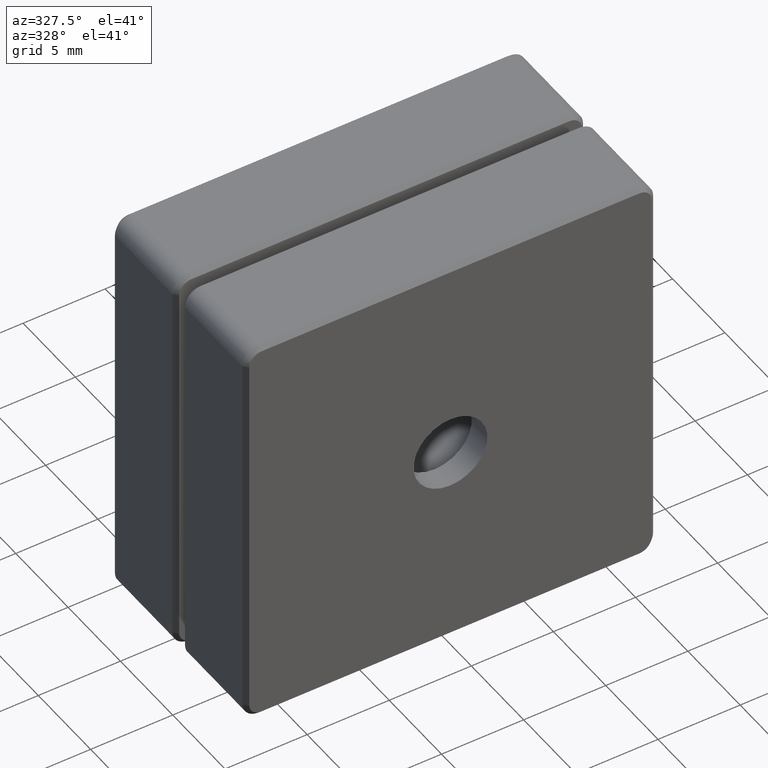
[diagram: clean part render]
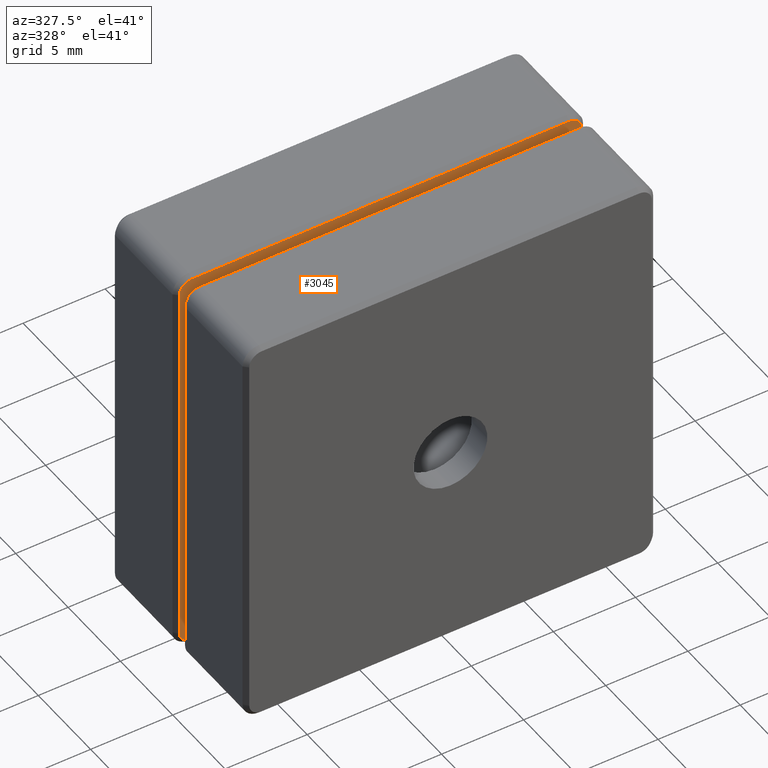
[diagram: same view with one face highlighted and labeled with its STEP entity id]
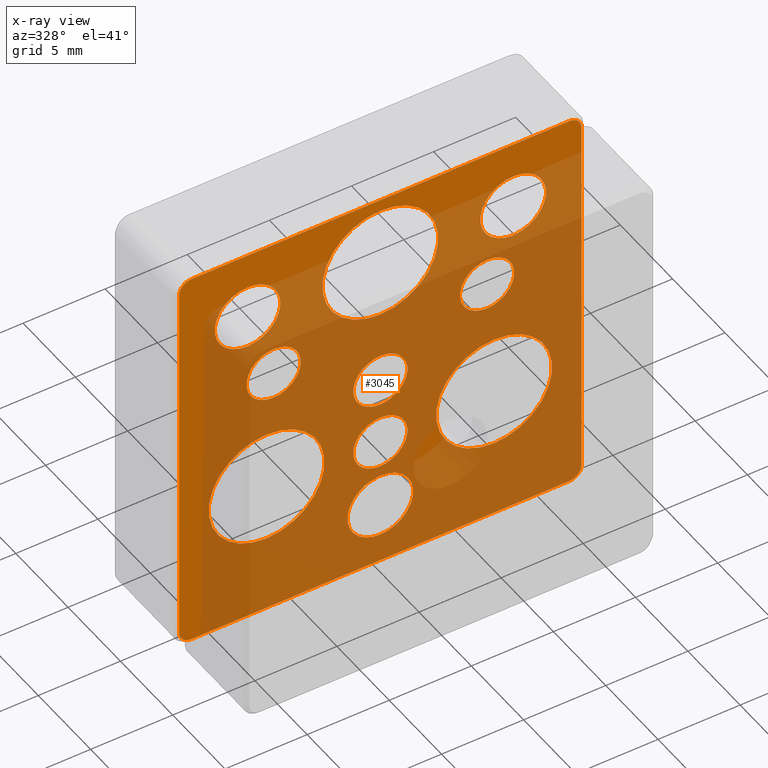
[diagram: x-ray of the same camera — body ghosted, the highlighted face saturated]
A machine part, auxiliary view. The second image highlights one B-rep face of the part: STEP entity #3045.
The next image is the same camera in x-ray: the body ghosted, the highlighted face saturated — about 79% of this face is hidden behind the body in this view.
In plain terms, the highlighted planar face has unit normal (-0, -1, 0).
Its self-contained STEP definition (entity closure, byte-faithful):
#10 = DIRECTION ( 'NONE',  ( 4.060337135958214105E-16, 0.0000000000000000000, 1.000000000000000000 ) ) ;
#20 = EDGE_CURVE ( 'NONE', #1151, #3327, #760, .T. ) ;
#37 = DIRECTION ( 'NONE',  ( -6.706162754953245178E-19, -1.000000000000000000, 7.904105642296774844E-20 ) ) ;
#76 = CIRCLE ( 'NONE', #3470, 2.000000000000000000 ) ;
#82 = CIRCLE ( 'NONE', #2383, 0.7499999999999988898 ) ;
#103 = ORIENTED_EDGE ( 'NONE', *, *, #525, .F. ) ;
#109 = VERTEX_POINT ( 'NONE', #2415 ) ;
#131 = VERTEX_POINT ( 'NONE', #2643 ) ;
#134 = CARTESIAN_POINT ( 'NONE',  ( -12.24999999999999467, 3.699958608817714101, -11.49999999999999645 ) ) ;
#136 = DIRECTION ( 'NONE',  ( 4.060337135958212133E-16, 0.0000000000000000000, 1.000000000000000000 ) ) ;
#142 = AXIS2_PLACEMENT_3D ( 'NONE', #605, #2214, #1677 ) ;
#149 = EDGE_CURVE ( 'NONE', #2611, #2272, #1176, .T. ) ;
#151 = EDGE_CURVE ( 'NONE', #109, #1894, #1357, .T. ) ;
#154 = ORIENTED_EDGE ( 'NONE', *, *, #3397, .T. ) ;
#159 = EDGE_LOOP ( 'NONE', ( #1069, #976 ) ) ;
#183 = VERTEX_POINT ( 'NONE', #3323 ) ;
#195 = FACE_BOUND ( 'NONE', #159, .T. ) ;
#207 = EDGE_CURVE ( 'NONE', #131, #2823, #1309, .T. ) ;
#208 = CARTESIAN_POINT ( 'NONE',  ( -12.24999999999999112, 3.699958608817714101, 11.50000000000000533 ) ) ;
#211 = CARTESIAN_POINT ( 'NONE',  ( -6.499999999999986677, 3.699958608817712769, 5.149999999999989697 ) ) ;
#225 = ORIENTED_EDGE ( 'NONE', *, *, #20, .T. ) ;
#228 = EDGE_CURVE ( 'NONE', #283, #2669, #300, .T. ) ;
#241 = CIRCLE ( 'NONE', #142, 2.000000000000000000 ) ;
#242 = VERTEX_POINT ( 'NONE', #953 ) ;
#252 = DIRECTION ( 'NONE',  ( 6.706162754953245178E-19, 1.000000000000000000, -7.904105642296774844E-20 ) ) ;
#278 = ORIENTED_EDGE ( 'NONE', *, *, #1503, .F. ) ;
#280 = ORIENTED_EDGE ( 'NONE', *, *, #360, .F. ) ;
#283 = VERTEX_POINT ( 'NONE', #3372 ) ;
#300 = CIRCLE ( 'NONE', #674, 1.649999999999999023 ) ;
#304 = EDGE_CURVE ( 'NONE', #2123, #2611, #3043, .T. ) ;
#307 = VERTEX_POINT ( 'NONE', #3111 ) ;
#308 = DIRECTION ( 'NONE',  ( 5.256737805990360535E-16, 0.0000000000000000000, 1.000000000000000000 ) ) ;
#316 = ORIENTED_EDGE ( 'NONE', *, *, #706, .F. ) ;
#327 = AXIS2_PLACEMENT_3D ( 'NONE', #1696, #3000, #1117 ) ;
#330 = DIRECTION ( 'NONE',  ( 4.921201350288817487E-16, 0.0000000000000000000, 1.000000000000000000 ) ) ;
#335 = CIRCLE ( 'NONE', #3428, 1.649999999999988365 ) ;
#337 = CARTESIAN_POINT ( 'NONE',  ( -11.49999999999999467, 3.699958608817714101, -12.24999999999999467 ) ) ;
#346 = EDGE_LOOP ( 'NONE', ( #103, #2404 ) ) ;
#358 = EDGE_LOOP ( 'NONE', ( #2468, #2969 ) ) ;
#359 = VERTEX_POINT ( 'NONE', #2885 ) ;
#360 = EDGE_CURVE ( 'NONE', #3007, #2559, #1805, .T. ) ;
#362 = FACE_BOUND ( 'NONE', #346, .T. ) ;
#382 = AXIS2_PLACEMENT_3D ( 'NONE', #2937, #1355, #1314 ) ;
#384 = EDGE_LOOP ( 'NONE', ( #316, #1973 ) ) ;
#411 = CARTESIAN_POINT ( 'NONE',  ( -11.49999999999999112, 3.699958608817714101, 12.25000000000000533 ) ) ;
#416 = CIRCLE ( 'NONE', #382, 2.000000000000000000 ) ;
#428 = AXIS2_PLACEMENT_3D ( 'NONE', #1651, #37, #308 ) ;
#451 = FACE_BOUND ( 'NONE', #568, .T. ) ;
#453 = AXIS2_PLACEMENT_3D ( 'NONE', #1992, #2540, #948 ) ;
#471 = VECTOR ( 'NONE', #664, 1000.000000000000000 ) ;
#478 = EDGE_CURVE ( 'NONE', #2697, #1014, #82, .T. ) ;
#522 = CARTESIAN_POINT ( 'NONE',  ( 1.146814786738503455E-14, 3.699958608817714101, 2.371231692689009342E-19 ) ) ;
#525 = EDGE_CURVE ( 'NONE', #2669, #283, #2250, .T. ) ;
#529 = CARTESIAN_POINT ( 'NONE',  ( 6.500000000000011546, 3.699958608817712769, 3.499999999999999112 ) ) ;
#535 = AXIS2_PLACEMENT_3D ( 'NONE', #874, #1394, #608 ) ;
#539 = CARTESIAN_POINT ( 'NONE',  ( 1.043276189771568680E-14, 3.699958608817712769, -2.550000000000012257 ) ) ;
#546 = CARTESIAN_POINT ( 'NONE',  ( 8.892795769816661266E-15, 3.699958608817712769, -5.849999999999988987 ) ) ;
#548 = DIRECTION ( 'NONE',  ( 0.0000000000000000000, 0.0000000000000000000, 1.000000000000000000 ) ) ;
#554 = CARTESIAN_POINT ( 'NONE',  ( 11.50000000000000888, 3.699958608817714101, 12.25000000000000000 ) ) ;
#568 = EDGE_LOOP ( 'NONE', ( #710, #3100 ) ) ;
#569 = DIRECTION ( 'NONE',  ( -6.706162754953245178E-19, -1.000000000000000000, 7.904105642296774844E-20 ) ) ;
#572 = CARTESIAN_POINT ( 'NONE',  ( 1.213810349481813988E-14, 3.699958608817714101, 1.649999999999999023 ) ) ;
#605 = CARTESIAN_POINT ( 'NONE',  ( -8.085799999999897736, 3.699958608817714101, 8.085800000000002541 ) ) ;
#608 = DIRECTION ( 'NONE',  ( 4.921201350288817487E-16, 0.0000000000000000000, 1.000000000000000000 ) ) ;
#616 = FACE_OUTER_BOUND ( 'NONE', #2941, .T. ) ;
#650 = DIRECTION ( 'NONE',  ( -6.706162754953245178E-19, -1.000000000000000000, 7.904105642296774844E-20 ) ) ;
#664 = DIRECTION ( 'NONE',  ( -1.000000000000000000, 6.706162754953179697E-19, 1.458251921993003464E-16 ) ) ;
#673 = CARTESIAN_POINT ( 'NONE',  ( 8.016861301820530470E-15, 3.699958608817714101, -8.500000000000000000 ) ) ;
#674 = AXIS2_PLACEMENT_3D ( 'NONE', #1487, #3073, #678 ) ;
#678 = DIRECTION ( 'NONE',  ( 4.060337135958214105E-16, 0.0000000000000000000, 1.000000000000000000 ) ) ;
#684 = DIRECTION ( 'NONE',  ( 4.060337135958211147E-16, 0.0000000000000000000, 1.000000000000000000 ) ) ;
#686 = DIRECTION ( 'NONE',  ( 0.0000000000000000000, 0.0000000000000000000, 1.000000000000000000 ) ) ;
#706 = EDGE_CURVE ( 'NONE', #183, #2723, #2544, .T. ) ;
#710 = ORIENTED_EDGE ( 'NONE', *, *, #3239, .F. ) ;
#735 = DIRECTION ( 'NONE',  ( -6.706162754953245178E-19, -1.000000000000000000, 7.904105642296774844E-20 ) ) ;
#736 = AXIS2_PLACEMENT_3D ( 'NONE', #978, #1753, #686 ) ;
#742 = AXIS2_PLACEMENT_3D ( 'NONE', #2906, #786, #1361 ) ;
#760 = CIRCLE ( 'NONE', #2943, 3.524999999999991473 ) ;
#762 = AXIS2_PLACEMENT_3D ( 'NONE', #673, #2501, #684 ) ;
#779 = AXIS2_PLACEMENT_3D ( 'NONE', #3019, #1435, #833 ) ;
#780 = LINE ( 'NONE', #3014, #2191 ) ;
#786 = DIRECTION ( 'NONE',  ( -6.706162754953245178E-19, -1.000000000000000000, 7.904105642296774844E-20 ) ) ;
#813 = VERTEX_POINT ( 'NONE', #3083 ) ;
#819 = CIRCLE ( 'NONE', #1383, 0.7500000000000006661 ) ;
#833 = DIRECTION ( 'NONE',  ( 4.060337135958211147E-16, 0.0000000000000000000, 1.000000000000000000 ) ) ;
#874 = CARTESIAN_POINT ( 'NONE',  ( -6.928203230275481239, 3.699958608817714101, -4.000000000000031974 ) ) ;
#901 = CIRCLE ( 'NONE', #535, 3.524999999999998135 ) ;
#903 = CARTESIAN_POINT ( 'NONE',  ( -11.49999999999999112, 3.699958608817714101, 12.25000000000000533 ) ) ;
#908 = CARTESIAN_POINT ( 'NONE',  ( 6.928203230275555846, 3.699958608817714101, -7.524999999999928413 ) ) ;
#922 = EDGE_CURVE ( 'NONE', #3327, #1151, #2127, .T. ) ;
#948 = DIRECTION ( 'NONE',  ( 5.256737805990365466E-16, 0.0000000000000000000, 1.000000000000000000 ) ) ;
#950 = FACE_BOUND ( 'NONE', #1628, .T. ) ;
#953 = CARTESIAN_POINT ( 'NONE',  ( -6.928203230275483016, 3.699958608817714101, -7.525000000000029665 ) ) ;
#973 = DIRECTION ( 'NONE',  ( -6.706162754953245178E-19, -1.000000000000000000, 7.904105642296774844E-20 ) ) ;
#976 = ORIENTED_EDGE ( 'NONE', *, *, #3159, .T. ) ;
#978 = CARTESIAN_POINT ( 'NONE',  ( 11.50000000000000888, 3.699958608817714101, 11.50000000000000000 ) ) ;
#990 = DIRECTION ( 'NONE',  ( 6.706162754953245178E-19, 1.000000000000000000, -7.904105642296774844E-20 ) ) ;
#1014 = VERTEX_POINT ( 'NONE', #2212 ) ;
#1032 = CARTESIAN_POINT ( 'NONE',  ( 8.085799999999926158, 3.699958608817714101, 8.085799999999998988 ) ) ;
#1045 = CIRCLE ( 'NONE', #453, 1.649999999999987033 ) ;
#1065 = CARTESIAN_POINT ( 'NONE',  ( 1.146814786738503455E-14, 3.699958608817714101, 2.371231692689009342E-19 ) ) ;
#1069 = ORIENTED_EDGE ( 'NONE', *, *, #3217, .T. ) ;
#1073 = AXIS2_PLACEMENT_3D ( 'NONE', #2390, #252, #2118 ) ;
#1081 = CARTESIAN_POINT ( 'NONE',  ( 11.50000000000000533, 3.699958608817714101, -11.50000000000000355 ) ) ;
#1105 = EDGE_LOOP ( 'NONE', ( #1135, #3229 ) ) ;
#1106 = ORIENTED_EDGE ( 'NONE', *, *, #2070, .F. ) ;
#1110 = CIRCLE ( 'NONE', #1743, 2.000000000000000000 ) ;
#1117 = DIRECTION ( 'NONE',  ( 4.060337135958211147E-16, 0.0000000000000000000, 1.000000000000000000 ) ) ;
#1133 = AXIS2_PLACEMENT_3D ( 'NONE', #522, #1310, #1332 ) ;
#1135 = ORIENTED_EDGE ( 'NONE', *, *, #3451, .F. ) ;
#1151 = VERTEX_POINT ( 'NONE', #2492 ) ;
#1176 = LINE ( 'NONE', #903, #471 ) ;
#1214 = CARTESIAN_POINT ( 'NONE',  ( 6.500000000000012434, 3.699958608817712769, 5.149999999999987921 ) ) ;
#1243 = ORIENTED_EDGE ( 'NONE', *, *, #1859, .T. ) ;
#1253 = EDGE_CURVE ( 'NONE', #2723, #183, #76, .T. ) ;
#1278 = CARTESIAN_POINT ( 'NONE',  ( -11.49999999999999467, 3.699958608817714101, -11.49999999999999645 ) ) ;
#1297 = DIRECTION ( 'NONE',  ( -6.706162754953245178E-19, -1.000000000000000000, 7.904105642296774844E-20 ) ) ;
#1309 = CIRCLE ( 'NONE', #428, 1.649999999999988809 ) ;
#1310 = DIRECTION ( 'NONE',  ( -6.706162754953244216E-19, -1.000000000000000000, 7.904105642296535306E-20 ) ) ;
#1314 = DIRECTION ( 'NONE',  ( 0.0000000000000000000, 0.0000000000000000000, 1.000000000000000000 ) ) ;
#1332 = DIRECTION ( 'NONE',  ( 4.060337135958214105E-16, 7.904105642296507621E-20, 1.000000000000000000 ) ) ;
#1355 = DIRECTION ( 'NONE',  ( -6.706162754953245178E-19, -1.000000000000000000, 7.904105642296774844E-20 ) ) ;
#1356 = AXIS2_PLACEMENT_3D ( 'NONE', #1032, #3213, #548 ) ;
#1357 = CIRCLE ( 'NONE', #779, 3.525000000000003908 ) ;
#1361 = DIRECTION ( 'NONE',  ( 0.0000000000000000000, 0.0000000000000000000, 1.000000000000000000 ) ) ;
#1383 = AXIS2_PLACEMENT_3D ( 'NONE', #1278, #735, #2072 ) ;
#1394 = DIRECTION ( 'NONE',  ( 6.706162754953245178E-19, 1.000000000000000000, -7.904105642296774844E-20 ) ) ;
#1401 = CARTESIAN_POINT ( 'NONE',  ( 11.50000000000000533, 3.699958608817714101, -12.25000000000000178 ) ) ;
#1426 = CARTESIAN_POINT ( 'NONE',  ( -6.928203230275481239, 3.699958608817714101, -4.000000000000031974 ) ) ;
#1435 = DIRECTION ( 'NONE',  ( 6.706162754953245178E-19, 1.000000000000000000, -7.904105642296774844E-20 ) ) ;
#1437 = CARTESIAN_POINT ( 'NONE',  ( 6.959864514799419720E-15, 3.699958608817714101, -10.50000000000000000 ) ) ;
#1439 = CARTESIAN_POINT ( 'NONE',  ( 9.762806270282586202E-15, 3.699958608817712769, -4.200000000000000178 ) ) ;
#1461 = CARTESIAN_POINT ( 'NONE',  ( 8.016861301820530470E-15, 3.699958608817714101, -8.500000000000000000 ) ) ;
#1487 = CARTESIAN_POINT ( 'NONE',  ( 1.146814786738503455E-14, 3.699958608817714101, 2.371231692689009342E-19 ) ) ;
#1503 = EDGE_CURVE ( 'NONE', #359, #813, #1720, .T. ) ;
#1516 = DIRECTION ( 'NONE',  ( 0.0000000000000000000, 0.0000000000000000000, -1.000000000000000000 ) ) ;
#1519 = CARTESIAN_POINT ( 'NONE',  ( 1.187374329970901183E-14, 3.699958608817714101, 4.474999999999996092 ) ) ;
#1521 = DIRECTION ( 'NONE',  ( 4.060337135958211147E-16, 0.0000000000000000000, 1.000000000000000000 ) ) ;
#1530 = AXIS2_PLACEMENT_3D ( 'NONE', #2330, #1297, #1590 ) ;
#1580 = VECTOR ( 'NONE', #3343, 1000.000000000000000 ) ;
#1590 = DIRECTION ( 'NONE',  ( 5.256737805990365466E-16, 0.0000000000000000000, 1.000000000000000000 ) ) ;
#1628 = EDGE_LOOP ( 'NONE', ( #278, #2157 ) ) ;
#1631 = CIRCLE ( 'NONE', #327, 3.525000000000003908 ) ;
#1638 = CIRCLE ( 'NONE', #742, 0.7500000000000006661 ) ;
#1651 = CARTESIAN_POINT ( 'NONE',  ( 6.500000000000011546, 3.699958608817712769, 3.499999999999999112 ) ) ;
#1677 = DIRECTION ( 'NONE',  ( 0.0000000000000000000, 0.0000000000000000000, -1.000000000000000000 ) ) ;
#1682 = DIRECTION ( 'NONE',  ( -6.706162754953245178E-19, -1.000000000000000000, 7.904105642296774844E-20 ) ) ;
#1696 = CARTESIAN_POINT ( 'NONE',  ( 1.373670013683372307E-14, 3.699958608817714101, 8.000000000000000000 ) ) ;
#1708 = FACE_BOUND ( 'NONE', #358, .T. ) ;
#1714 = DIRECTION ( 'NONE',  ( 4.060337135958212133E-16, 0.0000000000000000000, 1.000000000000000000 ) ) ;
#1720 = CIRCLE ( 'NONE', #1356, 2.000000000000000000 ) ;
#1743 = AXIS2_PLACEMENT_3D ( 'NONE', #2843, #973, #1516 ) ;
#1745 = ORIENTED_EDGE ( 'NONE', *, *, #3294, .T. ) ;
#1751 = CIRCLE ( 'NONE', #3396, 3.524999999999998135 ) ;
#1753 = DIRECTION ( 'NONE',  ( -6.706162754953245178E-19, -1.000000000000000000, 7.904105642296774844E-20 ) ) ;
#1756 = EDGE_CURVE ( 'NONE', #2105, #3061, #335, .T. ) ;
#1778 = ORIENTED_EDGE ( 'NONE', *, *, #304, .T. ) ;
#1805 = CIRCLE ( 'NONE', #1530, 1.649999999999987033 ) ;
#1832 = EDGE_CURVE ( 'NONE', #2559, #3007, #1045, .T. ) ;
#1859 = EDGE_CURVE ( 'NONE', #2775, #2697, #2490, .T. ) ;
#1866 = FACE_BOUND ( 'NONE', #2933, .T. ) ;
#1880 = CARTESIAN_POINT ( 'NONE',  ( -8.085799999999895959, 3.699958608817714101, 10.08580000000000254 ) ) ;
#1894 = VERTEX_POINT ( 'NONE', #1519 ) ;
#1907 = CIRCLE ( 'NONE', #2442, 1.649999999999988365 ) ;
#1924 = CARTESIAN_POINT ( 'NONE',  ( -8.085799999999897736, 3.699958608817714101, 6.085800000000002541 ) ) ;
#1928 = CARTESIAN_POINT ( 'NONE',  ( 9.762806270282586202E-15, 3.699958608817712769, -4.200000000000000178 ) ) ;
#1973 = ORIENTED_EDGE ( 'NONE', *, *, #1253, .F. ) ;
#1980 = CARTESIAN_POINT ( 'NONE',  ( -12.24999999999999467, 3.699958608817714101, -11.49999999999999645 ) ) ;
#1992 = CARTESIAN_POINT ( 'NONE',  ( -6.499999999999987566, 3.699958608817712769, 3.500000000000002665 ) ) ;
#2023 = EDGE_CURVE ( 'NONE', #813, #359, #416, .T. ) ;
#2055 = ORIENTED_EDGE ( 'NONE', *, *, #207, .F. ) ;
#2068 = CARTESIAN_POINT ( 'NONE',  ( -6.499999999999988454, 3.699958608817712769, 1.850000000000015188 ) ) ;
#2070 = EDGE_CURVE ( 'NONE', #2823, #131, #3426, .T. ) ;
#2072 = DIRECTION ( 'NONE',  ( 0.0000000000000000000, 0.0000000000000000000, 1.000000000000000000 ) ) ;
#2105 = VERTEX_POINT ( 'NONE', #546 ) ;
#2118 = DIRECTION ( 'NONE',  ( 4.921201350288826362E-16, 0.0000000000000000000, 1.000000000000000000 ) ) ;
#2123 = VERTEX_POINT ( 'NONE', #2715 ) ;
#2127 = CIRCLE ( 'NONE', #1073, 3.524999999999991473 ) ;
#2157 = ORIENTED_EDGE ( 'NONE', *, *, #2023, .F. ) ;
#2188 = EDGE_CURVE ( 'NONE', #2272, #2975, #1638, .T. ) ;
#2191 = VECTOR ( 'NONE', #2217, 1000.000000000000000 ) ;
#2212 = CARTESIAN_POINT ( 'NONE',  ( 12.25000000000000355, 3.699958608817714101, -11.50000000000000355 ) ) ;
#2214 = DIRECTION ( 'NONE',  ( -6.706162754953245178E-19, -1.000000000000000000, 7.904105642296774844E-20 ) ) ;
#2217 = DIRECTION ( 'NONE',  ( 2.672558355176768430E-16, 7.904105642296520862E-20, 1.000000000000000000 ) ) ;
#2221 = AXIS2_PLACEMENT_3D ( 'NONE', #1065, #2930, #10 ) ;
#2232 = FACE_BOUND ( 'NONE', #2237, .T. ) ;
#2237 = EDGE_LOOP ( 'NONE', ( #2972, #280 ) ) ;
#2250 = CIRCLE ( 'NONE', #2221, 1.649999999999999023 ) ;
#2272 = VERTEX_POINT ( 'NONE', #411 ) ;
#2317 = ORIENTED_EDGE ( 'NONE', *, *, #478, .T. ) ;
#2330 = CARTESIAN_POINT ( 'NONE',  ( -6.499999999999987566, 3.699958608817712769, 3.500000000000002665 ) ) ;
#2383 = AXIS2_PLACEMENT_3D ( 'NONE', #1081, #569, #2422 ) ;
#2384 = DIRECTION ( 'NONE',  ( -6.706162754953245178E-19, -1.000000000000000000, 7.904105642296774844E-20 ) ) ;
#2390 = CARTESIAN_POINT ( 'NONE',  ( 6.928203230275557623, 3.699958608817714101, -3.999999999999936939 ) ) ;
#2404 = ORIENTED_EDGE ( 'NONE', *, *, #228, .F. ) ;
#2415 = CARTESIAN_POINT ( 'NONE',  ( 1.516796897725899512E-14, 3.699958608817714101, 11.52500000000000391 ) ) ;
#2422 = DIRECTION ( 'NONE',  ( 0.0000000000000000000, 0.0000000000000000000, 1.000000000000000000 ) ) ;
#2442 = AXIS2_PLACEMENT_3D ( 'NONE', #1439, #1682, #1714 ) ;
#2464 = DIRECTION ( 'NONE',  ( 6.706162754953245178E-19, 1.000000000000000000, -7.904105642296774844E-20 ) ) ;
#2468 = ORIENTED_EDGE ( 'NONE', *, *, #151, .T. ) ;
#2471 = AXIS2_PLACEMENT_3D ( 'NONE', #529, #2384, #2625 ) ;
#2490 = LINE ( 'NONE', #2807, #3386 ) ;
#2492 = CARTESIAN_POINT ( 'NONE',  ( 6.928203230275559399, 3.699958608817714101, -0.4749999999999450773 ) ) ;
#2501 = DIRECTION ( 'NONE',  ( -6.706162754953245178E-19, -1.000000000000000000, 7.904105642296774844E-20 ) ) ;
#2540 = DIRECTION ( 'NONE',  ( -6.706162754953245178E-19, -1.000000000000000000, 7.904105642296774844E-20 ) ) ;
#2544 = CIRCLE ( 'NONE', #762, 2.000000000000000000 ) ;
#2559 = VERTEX_POINT ( 'NONE', #211 ) ;
#2611 = VERTEX_POINT ( 'NONE', #554 ) ;
#2625 = DIRECTION ( 'NONE',  ( 5.256737805990360535E-16, 0.0000000000000000000, 1.000000000000000000 ) ) ;
#2634 = CARTESIAN_POINT ( 'NONE',  ( 6.928203230275557623, 3.699958608817714101, -3.999999999999936939 ) ) ;
#2642 = VERTEX_POINT ( 'NONE', #1880 ) ;
#2643 = CARTESIAN_POINT ( 'NONE',  ( 6.500000000000010658, 3.699958608817712769, 1.850000000000010969 ) ) ;
#2652 = PLANE ( 'NONE',  #1133 ) ;
#2669 = VERTEX_POINT ( 'NONE', #572 ) ;
#2687 = EDGE_CURVE ( 'NONE', #2642, #2701, #241, .T. ) ;
#2697 = VERTEX_POINT ( 'NONE', #1401 ) ;
#2701 = VERTEX_POINT ( 'NONE', #1924 ) ;
#2715 = CARTESIAN_POINT ( 'NONE',  ( 12.25000000000000888, 3.699958608817714101, 11.49999999999999822 ) ) ;
#2723 = VERTEX_POINT ( 'NONE', #1437 ) ;
#2739 = EDGE_CURVE ( 'NONE', #1894, #109, #1631, .T. ) ;
#2775 = VERTEX_POINT ( 'NONE', #337 ) ;
#2802 = ORIENTED_EDGE ( 'NONE', *, *, #922, .T. ) ;
#2807 = CARTESIAN_POINT ( 'NONE',  ( 11.50000000000000533, 3.699958608817714101, -12.25000000000000178 ) ) ;
#2814 = ORIENTED_EDGE ( 'NONE', *, *, #3218, .T. ) ;
#2822 = FACE_BOUND ( 'NONE', #384, .T. ) ;
#2823 = VERTEX_POINT ( 'NONE', #1214 ) ;
#2843 = CARTESIAN_POINT ( 'NONE',  ( -8.085799999999897736, 3.699958608817714101, 8.085800000000002541 ) ) ;
#2845 = EDGE_LOOP ( 'NONE', ( #225, #2802 ) ) ;
#2852 = DIRECTION ( 'NONE',  ( 4.921201350288826362E-16, 0.0000000000000000000, 1.000000000000000000 ) ) ;
#2865 = ORIENTED_EDGE ( 'NONE', *, *, #149, .T. ) ;
#2885 = CARTESIAN_POINT ( 'NONE',  ( 8.085799999999926158, 3.699958608817714101, 10.08579999999999899 ) ) ;
#2906 = CARTESIAN_POINT ( 'NONE',  ( -11.49999999999999112, 3.699958608817714101, 11.50000000000000533 ) ) ;
#2930 = DIRECTION ( 'NONE',  ( -6.706162754953245178E-19, -1.000000000000000000, 7.904105642296774844E-20 ) ) ;
#2933 = EDGE_LOOP ( 'NONE', ( #1106, #2055 ) ) ;
#2937 = CARTESIAN_POINT ( 'NONE',  ( 8.085799999999926158, 3.699958608817714101, 8.085799999999998988 ) ) ;
#2941 = EDGE_LOOP ( 'NONE', ( #1778, #2865, #3356, #1745, #154, #1243, #2317, #2814 ) ) ;
#2943 = AXIS2_PLACEMENT_3D ( 'NONE', #2634, #990, #2852 ) ;
#2948 = FACE_BOUND ( 'NONE', #1105, .T. ) ;
#2969 = ORIENTED_EDGE ( 'NONE', *, *, #2739, .T. ) ;
#2972 = ORIENTED_EDGE ( 'NONE', *, *, #1832, .F. ) ;
#2975 = VERTEX_POINT ( 'NONE', #208 ) ;
#2988 = FACE_BOUND ( 'NONE', #2845, .T. ) ;
#3000 = DIRECTION ( 'NONE',  ( 6.706162754953245178E-19, 1.000000000000000000, -7.904105642296774844E-20 ) ) ;
#3007 = VERTEX_POINT ( 'NONE', #2068 ) ;
#3014 = CARTESIAN_POINT ( 'NONE',  ( 12.25000000000000888, 3.699958608817714101, 11.49999999999999822 ) ) ;
#3019 = CARTESIAN_POINT ( 'NONE',  ( 1.373670013683372307E-14, 3.699958608817714101, 8.000000000000000000 ) ) ;
#3043 = CIRCLE ( 'NONE', #736, 0.7500000000000006661 ) ;
#3045 = ADVANCED_FACE ( 'NONE', ( #1866, #2232, #451, #1708, #195, #2988, #616, #2948, #2822, #950, #362 ), #2652, .T. ) ;
#3061 = VERTEX_POINT ( 'NONE', #539 ) ;
#3073 = DIRECTION ( 'NONE',  ( -6.706162754953245178E-19, -1.000000000000000000, 7.904105642296774844E-20 ) ) ;
#3083 = CARTESIAN_POINT ( 'NONE',  ( 8.085799999999924381, 3.699958608817714101, 6.085799999999998988 ) ) ;
#3095 = DIRECTION ( 'NONE',  ( -6.706162754953245178E-19, -1.000000000000000000, 7.904105642296774844E-20 ) ) ;
#3100 = ORIENTED_EDGE ( 'NONE', *, *, #1756, .F. ) ;
#3111 = CARTESIAN_POINT ( 'NONE',  ( -6.928203230275479463, 3.699958608817714101, -0.4750000000000340061 ) ) ;
#3159 = EDGE_CURVE ( 'NONE', #242, #307, #901, .T. ) ;
#3213 = DIRECTION ( 'NONE',  ( -6.706162754953245178E-19, -1.000000000000000000, 7.904105642296774844E-20 ) ) ;
#3217 = EDGE_CURVE ( 'NONE', #307, #242, #1751, .T. ) ;
#3218 = EDGE_CURVE ( 'NONE', #1014, #2123, #780, .T. ) ;
#3229 = ORIENTED_EDGE ( 'NONE', *, *, #2687, .F. ) ;
#3239 = EDGE_CURVE ( 'NONE', #3061, #2105, #1907, .T. ) ;
#3294 = EDGE_CURVE ( 'NONE', #2975, #3367, #3329, .T. ) ;
#3323 = CARTESIAN_POINT ( 'NONE',  ( 8.828928729012173292E-15, 3.699958608817714101, -6.500000000000000888 ) ) ;
#3327 = VERTEX_POINT ( 'NONE', #908 ) ;
#3329 = LINE ( 'NONE', #1980, #1580 ) ;
#3343 = DIRECTION ( 'NONE',  ( -2.672558355176768430E-16, -7.904105642296520862E-20, -1.000000000000000000 ) ) ;
#3346 = DIRECTION ( 'NONE',  ( 1.000000000000000000, -6.706162754953179697E-19, -1.458251921993003464E-16 ) ) ;
#3356 = ORIENTED_EDGE ( 'NONE', *, *, #2188, .T. ) ;
#3367 = VERTEX_POINT ( 'NONE', #134 ) ;
#3372 = CARTESIAN_POINT ( 'NONE',  ( 1.059813736691910330E-14, 3.699958608817714101, -1.649999999999999023 ) ) ;
#3386 = VECTOR ( 'NONE', #3346, 1000.000000000000000 ) ;
#3396 = AXIS2_PLACEMENT_3D ( 'NONE', #1426, #2464, #330 ) ;
#3397 = EDGE_CURVE ( 'NONE', #3367, #2775, #819, .T. ) ;
#3426 = CIRCLE ( 'NONE', #2471, 1.649999999999988809 ) ;
#3428 = AXIS2_PLACEMENT_3D ( 'NONE', #1928, #3095, #136 ) ;
#3451 = EDGE_CURVE ( 'NONE', #2701, #2642, #1110, .T. ) ;
#3470 = AXIS2_PLACEMENT_3D ( 'NONE', #1461, #650, #1521 ) ;